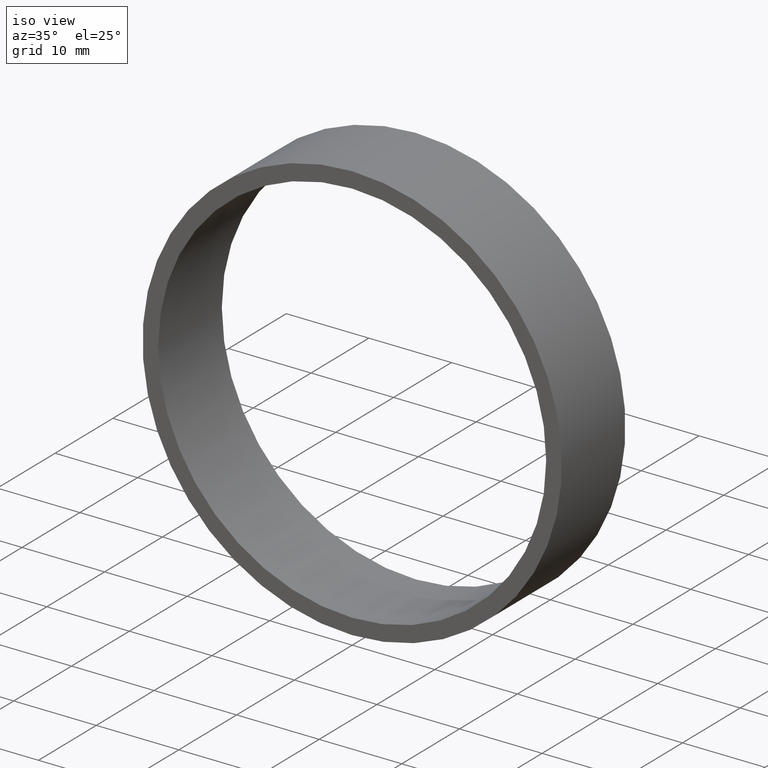
[diagram: clean part render]
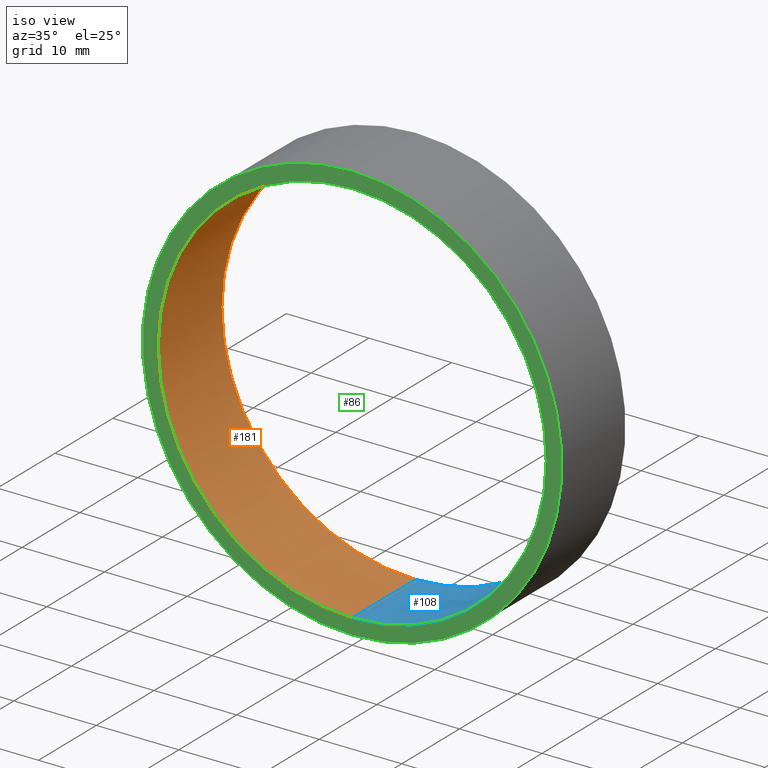
[diagram: same view with three faces highlighted in distinct colors, each labeled with its STEP entity id]
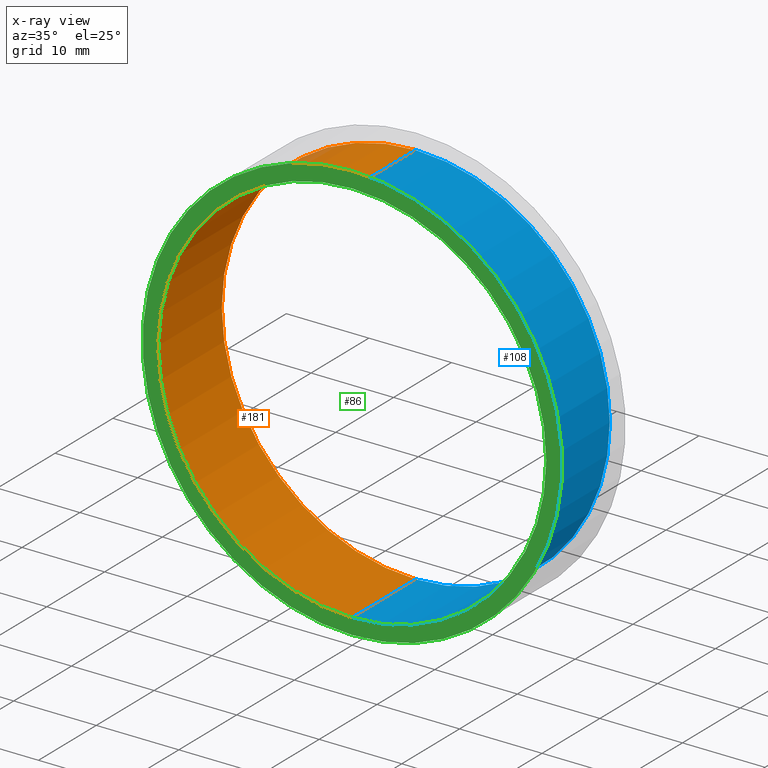
[diagram: x-ray of the same camera — body ghosted, the three highlighted faces saturated]
A machine part, iso view with three faces highlighted in distinct colors.
The next image is the same camera in x-ray (body ghosted, the three faces saturated) — at least one of them is partly hidden behind the body in this view.
Their STEP definitions:

[orange] entity #181 — the highlighted cylindrical surface (partial cylindrical patch) has radius 23.5 mm, axis along (-0, -1, -0).
#6 = EDGE_CURVE ( 'NONE', #135, #198, #100, .T. ) ;
#14 = VECTOR ( 'NONE', #188, 1000.000000000000000 ) ;
#16 = CARTESIAN_POINT ( 'NONE',  ( 2.877919977996280700E-015, 11.00000000000000000, 23.50000000000000400 ) ) ;
#28 = AXIS2_PLACEMENT_3D ( 'NONE', #38, #102, #40 ) ;
#38 = CARTESIAN_POINT ( 'NONE',  ( 0.0000000000000000000, 11.00000000000000000, 0.0000000000000000000 ) ) ;
#40 = DIRECTION ( 'NONE',  ( 0.0000000000000000000, 0.0000000000000000000, -1.000000000000000000 ) ) ;
#46 = AXIS2_PLACEMENT_3D ( 'NONE', #150, #52, #237 ) ;
#52 = DIRECTION ( 'NONE',  ( 0.0000000000000000000, 1.000000000000000000, 0.0000000000000000000 ) ) ;
#53 = CARTESIAN_POINT ( 'NONE',  ( 0.0000000000000000000, 0.0000000000000000000, -23.50000000000000400 ) ) ;
#72 = ORIENTED_EDGE ( 'NONE', *, *, #154, .T. ) ;
#78 = AXIS2_PLACEMENT_3D ( 'NONE', #148, #215, #233 ) ;
#93 = EDGE_CURVE ( 'NONE', #135, #134, #186, .T. ) ;
#100 = CIRCLE ( 'NONE', #46, 23.50000000000000400 ) ;
#102 = DIRECTION ( 'NONE',  ( -0.0000000000000000000, -1.000000000000000000, -0.0000000000000000000 ) ) ;
#127 = LINE ( 'NONE', #16, #14 ) ;
#134 = VERTEX_POINT ( 'NONE', #53 ) ;
#135 = VERTEX_POINT ( 'NONE', #217 ) ;
#146 = ORIENTED_EDGE ( 'NONE', *, *, #174, .F. ) ;
#148 = CARTESIAN_POINT ( 'NONE',  ( 0.0000000000000000000, 0.0000000000000000000, 0.0000000000000000000 ) ) ;
#150 = CARTESIAN_POINT ( 'NONE',  ( 0.0000000000000000000, 11.00000000000000000, 0.0000000000000000000 ) ) ;
#151 = CYLINDRICAL_SURFACE ( 'NONE', #28, 23.50000000000000400 ) ;
#153 = CARTESIAN_POINT ( 'NONE',  ( 0.0000000000000000000, 11.00000000000000000, -23.50000000000000400 ) ) ;
#154 = EDGE_CURVE ( 'NONE', #198, #189, #127, .T. ) ;
#156 = CARTESIAN_POINT ( 'NONE',  ( 2.877919977996280700E-015, 0.0000000000000000000, 23.50000000000000400 ) ) ;
#165 = ORIENTED_EDGE ( 'NONE', *, *, #93, .F. ) ;
#167 = ORIENTED_EDGE ( 'NONE', *, *, #6, .T. ) ;
#172 = EDGE_LOOP ( 'NONE', ( #167, #72, #146, #165 ) ) ;
#174 = EDGE_CURVE ( 'NONE', #134, #189, #243, .T. ) ;
#177 = CARTESIAN_POINT ( 'NONE',  ( 2.877919977996280700E-015, 11.00000000000000000, 23.50000000000000400 ) ) ;
#181 = ADVANCED_FACE ( 'NONE', ( #236 ), #151, .F. ) ;
#186 = LINE ( 'NONE', #153, #187 ) ;
#187 = VECTOR ( 'NONE', #212, 1000.000000000000000 ) ;
#188 = DIRECTION ( 'NONE',  ( -0.0000000000000000000, -1.000000000000000000, -0.0000000000000000000 ) ) ;
#189 = VERTEX_POINT ( 'NONE', #156 ) ;
#198 = VERTEX_POINT ( 'NONE', #177 ) ;
#212 = DIRECTION ( 'NONE',  ( -0.0000000000000000000, -1.000000000000000000, -0.0000000000000000000 ) ) ;
#215 = DIRECTION ( 'NONE',  ( 0.0000000000000000000, 1.000000000000000000, 0.0000000000000000000 ) ) ;
#217 = CARTESIAN_POINT ( 'NONE',  ( 0.0000000000000000000, 11.00000000000000000, -23.50000000000000400 ) ) ;
#233 = DIRECTION ( 'NONE',  ( 0.0000000000000000000, 0.0000000000000000000, 1.000000000000000000 ) ) ;
#236 = FACE_OUTER_BOUND ( 'NONE', #172, .T. ) ;
#237 = DIRECTION ( 'NONE',  ( 0.0000000000000000000, 0.0000000000000000000, 1.000000000000000000 ) ) ;
#243 = CIRCLE ( 'NONE', #78, 23.50000000000000400 ) ;

[blue] entity #108 — the highlighted cylindrical surface (partial cylindrical patch) has radius 23.5 mm, axis along (-0, -1, -0).
#2 = CARTESIAN_POINT ( 'NONE',  ( 0.0000000000000000000, 11.00000000000000000, 0.0000000000000000000 ) ) ;
#4 = AXIS2_PLACEMENT_3D ( 'NONE', #34, #112, #230 ) ;
#14 = VECTOR ( 'NONE', #188, 1000.000000000000000 ) ;
#16 = CARTESIAN_POINT ( 'NONE',  ( 2.877919977996280700E-015, 11.00000000000000000, 23.50000000000000400 ) ) ;
#19 = DIRECTION ( 'NONE',  ( 0.0000000000000000000, 0.0000000000000000000, 1.000000000000000000 ) ) ;
#34 = CARTESIAN_POINT ( 'NONE',  ( 0.0000000000000000000, 0.0000000000000000000, 0.0000000000000000000 ) ) ;
#37 = ORIENTED_EDGE ( 'NONE', *, *, #81, .T. ) ;
#47 = ORIENTED_EDGE ( 'NONE', *, *, #80, .F. ) ;
#53 = CARTESIAN_POINT ( 'NONE',  ( 0.0000000000000000000, 0.0000000000000000000, -23.50000000000000400 ) ) ;
#55 = FACE_OUTER_BOUND ( 'NONE', #131, .T. ) ;
#75 = CYLINDRICAL_SURFACE ( 'NONE', #197, 23.50000000000000400 ) ;
#77 = CARTESIAN_POINT ( 'NONE',  ( 0.0000000000000000000, 11.00000000000000000, 0.0000000000000000000 ) ) ;
#80 = EDGE_CURVE ( 'NONE', #189, #134, #166, .T. ) ;
#81 = EDGE_CURVE ( 'NONE', #198, #135, #92, .T. ) ;
#92 = CIRCLE ( 'NONE', #126, 23.50000000000000400 ) ;
#93 = EDGE_CURVE ( 'NONE', #135, #134, #186, .T. ) ;
#103 = ORIENTED_EDGE ( 'NONE', *, *, #154, .F. ) ;
#108 = ADVANCED_FACE ( 'NONE', ( #55 ), #75, .F. ) ;
#112 = DIRECTION ( 'NONE',  ( 0.0000000000000000000, 1.000000000000000000, 0.0000000000000000000 ) ) ;
#126 = AXIS2_PLACEMENT_3D ( 'NONE', #2, #142, #19 ) ;
#127 = LINE ( 'NONE', #16, #14 ) ;
#131 = EDGE_LOOP ( 'NONE', ( #103, #37, #143, #47 ) ) ;
#134 = VERTEX_POINT ( 'NONE', #53 ) ;
#135 = VERTEX_POINT ( 'NONE', #217 ) ;
#141 = DIRECTION ( 'NONE',  ( 0.0000000000000000000, 0.0000000000000000000, -1.000000000000000000 ) ) ;
#142 = DIRECTION ( 'NONE',  ( 0.0000000000000000000, 1.000000000000000000, 0.0000000000000000000 ) ) ;
#143 = ORIENTED_EDGE ( 'NONE', *, *, #93, .T. ) ;
#153 = CARTESIAN_POINT ( 'NONE',  ( 0.0000000000000000000, 11.00000000000000000, -23.50000000000000400 ) ) ;
#154 = EDGE_CURVE ( 'NONE', #198, #189, #127, .T. ) ;
#156 = CARTESIAN_POINT ( 'NONE',  ( 2.877919977996280700E-015, 0.0000000000000000000, 23.50000000000000400 ) ) ;
#166 = CIRCLE ( 'NONE', #4, 23.50000000000000400 ) ;
#177 = CARTESIAN_POINT ( 'NONE',  ( 2.877919977996280700E-015, 11.00000000000000000, 23.50000000000000400 ) ) ;
#186 = LINE ( 'NONE', #153, #187 ) ;
#187 = VECTOR ( 'NONE', #212, 1000.000000000000000 ) ;
#188 = DIRECTION ( 'NONE',  ( -0.0000000000000000000, -1.000000000000000000, -0.0000000000000000000 ) ) ;
#189 = VERTEX_POINT ( 'NONE', #156 ) ;
#197 = AXIS2_PLACEMENT_3D ( 'NONE', #77, #211, #141 ) ;
#198 = VERTEX_POINT ( 'NONE', #177 ) ;
#211 = DIRECTION ( 'NONE',  ( -0.0000000000000000000, -1.000000000000000000, -0.0000000000000000000 ) ) ;
#212 = DIRECTION ( 'NONE',  ( -0.0000000000000000000, -1.000000000000000000, -0.0000000000000000000 ) ) ;
#217 = CARTESIAN_POINT ( 'NONE',  ( 0.0000000000000000000, 11.00000000000000000, -23.50000000000000400 ) ) ;
#230 = DIRECTION ( 'NONE',  ( 0.0000000000000000000, 0.0000000000000000000, 1.000000000000000000 ) ) ;

[green] entity #86 — the highlighted planar face has unit normal (0, 1, 0).
#4 = AXIS2_PLACEMENT_3D ( 'NONE', #34, #112, #230 ) ;
#20 = DIRECTION ( 'NONE',  ( 0.0000000000000000000, 0.0000000000000000000, 1.000000000000000000 ) ) ;
#27 = FACE_BOUND ( 'NONE', #98, .T. ) ;
#33 = ORIENTED_EDGE ( 'NONE', *, *, #80, .T. ) ;
#34 = CARTESIAN_POINT ( 'NONE',  ( 0.0000000000000000000, 0.0000000000000000000, 0.0000000000000000000 ) ) ;
#42 = EDGE_CURVE ( 'NONE', #159, #192, #110, .T. ) ;
#49 = CARTESIAN_POINT ( 'NONE',  ( 0.0000000000000000000, 0.0000000000000000000, 0.0000000000000000000 ) ) ;
#50 = DIRECTION ( 'NONE',  ( 0.0000000000000000000, 0.0000000000000000000, 1.000000000000000000 ) ) ;
#53 = CARTESIAN_POINT ( 'NONE',  ( 0.0000000000000000000, 0.0000000000000000000, -23.50000000000000400 ) ) ;
#66 = DIRECTION ( 'NONE',  ( 0.0000000000000000000, 1.000000000000000000, 0.0000000000000000000 ) ) ;
#69 = ORIENTED_EDGE ( 'NONE', *, *, #157, .F. ) ;
#71 = AXIS2_PLACEMENT_3D ( 'NONE', #88, #66, #147 ) ;
#78 = AXIS2_PLACEMENT_3D ( 'NONE', #148, #215, #233 ) ;
#80 = EDGE_CURVE ( 'NONE', #189, #134, #166, .T. ) ;
#86 = ADVANCED_FACE ( 'NONE', ( #209, #27 ), #182, .F. ) ;
#88 = CARTESIAN_POINT ( 'NONE',  ( 0.0000000000000000000, 0.0000000000000000000, 0.0000000000000000000 ) ) ;
#98 = EDGE_LOOP ( 'NONE', ( #179, #33 ) ) ;
#110 = CIRCLE ( 'NONE', #130, 25.39999999999999900 ) ;
#112 = DIRECTION ( 'NONE',  ( 0.0000000000000000000, 1.000000000000000000, 0.0000000000000000000 ) ) ;
#117 = CARTESIAN_POINT ( 'NONE',  ( 0.0000000000000000000, 0.0000000000000000000, -25.39999999999999900 ) ) ;
#129 = DIRECTION ( 'NONE',  ( 0.0000000000000000000, 1.000000000000000000, 0.0000000000000000000 ) ) ;
#130 = AXIS2_PLACEMENT_3D ( 'NONE', #49, #129, #20 ) ;
#134 = VERTEX_POINT ( 'NONE', #53 ) ;
#147 = DIRECTION ( 'NONE',  ( 0.0000000000000000000, -0.0000000000000000000, 1.000000000000000000 ) ) ;
#148 = CARTESIAN_POINT ( 'NONE',  ( 0.0000000000000000000, 0.0000000000000000000, 0.0000000000000000000 ) ) ;
#156 = CARTESIAN_POINT ( 'NONE',  ( 2.877919977996280700E-015, 0.0000000000000000000, 23.50000000000000400 ) ) ;
#157 = EDGE_CURVE ( 'NONE', #192, #159, #171, .T. ) ;
#159 = VERTEX_POINT ( 'NONE', #117 ) ;
#166 = CIRCLE ( 'NONE', #4, 23.50000000000000400 ) ;
#171 = CIRCLE ( 'NONE', #191, 25.39999999999999900 ) ;
#174 = EDGE_CURVE ( 'NONE', #134, #189, #243, .T. ) ;
#179 = ORIENTED_EDGE ( 'NONE', *, *, #174, .T. ) ;
#182 = PLANE ( 'NONE',  #71 ) ;
#184 = CARTESIAN_POINT ( 'NONE',  ( 3.110602869834276900E-015, 0.0000000000000000000, 25.39999999999999900 ) ) ;
#185 = EDGE_LOOP ( 'NONE', ( #200, #69 ) ) ;
#189 = VERTEX_POINT ( 'NONE', #156 ) ;
#191 = AXIS2_PLACEMENT_3D ( 'NONE', #203, #210, #50 ) ;
#192 = VERTEX_POINT ( 'NONE', #184 ) ;
#200 = ORIENTED_EDGE ( 'NONE', *, *, #42, .F. ) ;
#203 = CARTESIAN_POINT ( 'NONE',  ( 0.0000000000000000000, 0.0000000000000000000, 0.0000000000000000000 ) ) ;
#209 = FACE_OUTER_BOUND ( 'NONE', #185, .T. ) ;
#210 = DIRECTION ( 'NONE',  ( 0.0000000000000000000, 1.000000000000000000, 0.0000000000000000000 ) ) ;
#215 = DIRECTION ( 'NONE',  ( 0.0000000000000000000, 1.000000000000000000, 0.0000000000000000000 ) ) ;
#230 = DIRECTION ( 'NONE',  ( 0.0000000000000000000, 0.0000000000000000000, 1.000000000000000000 ) ) ;
#233 = DIRECTION ( 'NONE',  ( 0.0000000000000000000, 0.0000000000000000000, 1.000000000000000000 ) ) ;
#243 = CIRCLE ( 'NONE', #78, 23.50000000000000400 ) ;